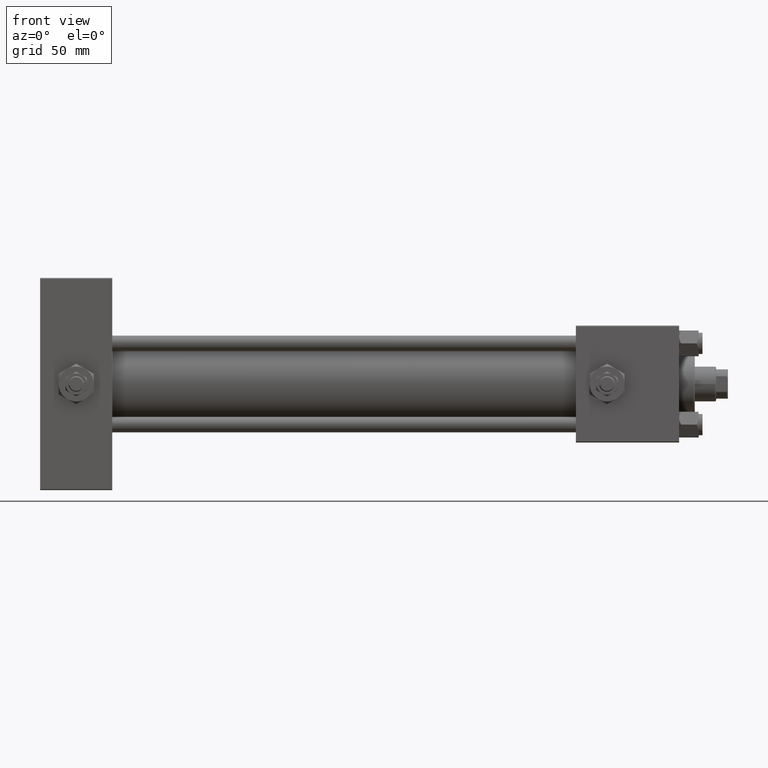
[diagram: clean part render]
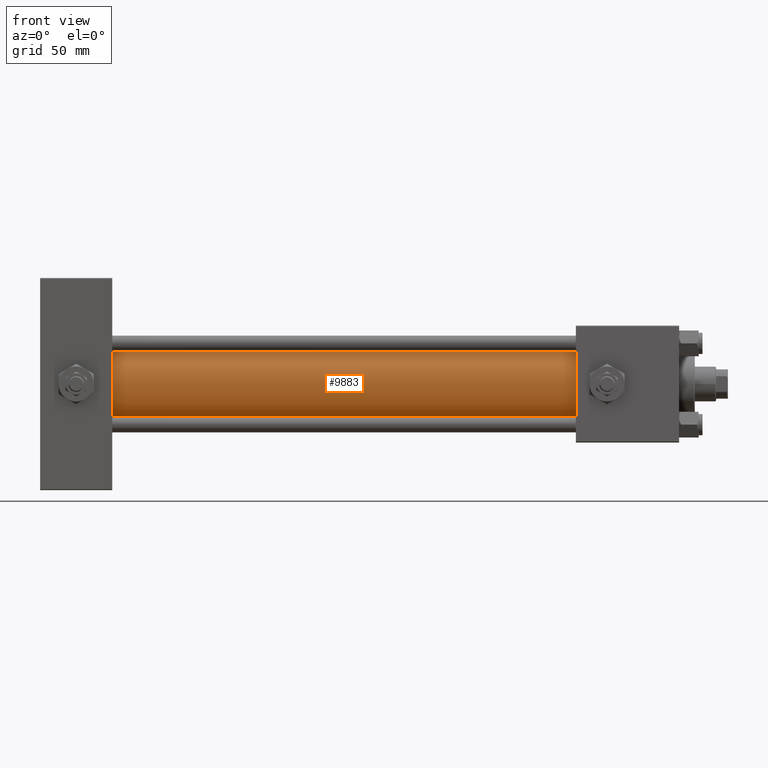
[diagram: same view with one face highlighted and labeled with its STEP entity id]
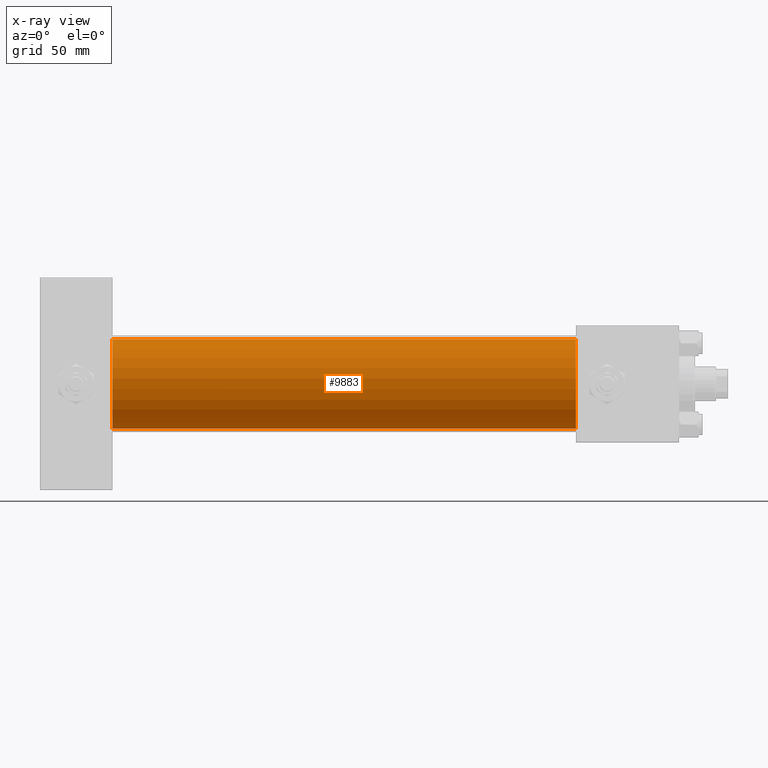
[diagram: x-ray of the same camera — body ghosted, the highlighted face saturated]
A machine part, front view. The second image highlights one B-rep face of the part: STEP entity #9883.
The next image is the same camera in x-ray: the body ghosted, the highlighted face saturated — about 0% of this face is hidden behind the body in this view.
In plain terms, the highlighted cylindrical surface (partial cylindrical patch) has radius 23 mm, axis along (-1, -0, -0).
Its self-contained STEP definition (entity closure, byte-faithful):
#370 = VERTEX_POINT ( 'NONE', #35804 ) ;
#2465 = EDGE_LOOP ( 'NONE', ( #39145, #46658, #7992, #23744 ) ) ;
#3704 = VERTEX_POINT ( 'NONE', #37259 ) ;
#6082 = CARTESIAN_POINT ( 'NONE',  ( 274.9999999999999432, -2.602085213965210642E-15, 0.000000000000000000 ) ) ;
#7679 = CYLINDRICAL_SURFACE ( 'NONE', #24881, 23.00000000000000000 ) ;
#7980 = CARTESIAN_POINT ( 'NONE',  ( 37.00000000000000711, -2.602085213965210642E-15, 0.000000000000000000 ) ) ;
#7992 = ORIENTED_EDGE ( 'NONE', *, *, #16468, .T. ) ;
#9094 = AXIS2_PLACEMENT_3D ( 'NONE', #7980, #24070, #31453 ) ;
#9883 = ADVANCED_FACE ( 'NONE', ( #44009 ), #7679, .T. ) ;
#12158 = CARTESIAN_POINT ( 'NONE',  ( 274.9999999999999432, -2.602085213965210642E-15, 0.000000000000000000 ) ) ;
#16468 = EDGE_CURVE ( 'NONE', #370, #37857, #30445, .T. ) ;
#18342 = CARTESIAN_POINT ( 'NONE',  ( 274.9999999999999432, -2.602085213965210642E-15, 23.00000000000000000 ) ) ;
#18465 = CIRCLE ( 'NONE', #48702, 23.00000000000000000 ) ;
#22530 = VECTOR ( 'NONE', #36409, 1000.000000000000000 ) ;
#23100 = EDGE_CURVE ( 'NONE', #370, #44529, #18465, .T. ) ;
#23744 = ORIENTED_EDGE ( 'NONE', *, *, #50417, .T. ) ;
#24024 = DIRECTION ( 'NONE',  ( 0.000000000000000000, 0.000000000000000000, 1.000000000000000000 ) ) ;
#24070 = DIRECTION ( 'NONE',  ( 1.000000000000000000, -0.000000000000000000, 0.000000000000000000 ) ) ;
#24881 = AXIS2_PLACEMENT_3D ( 'NONE', #12158, #47172, #24024 ) ;
#30445 = LINE ( 'NONE', #18342, #49461 ) ;
#31453 = DIRECTION ( 'NONE',  ( 0.000000000000000000, 0.000000000000000000, 1.000000000000000000 ) ) ;
#34009 = DIRECTION ( 'NONE',  ( 0.000000000000000000, 0.000000000000000000, -1.000000000000000000 ) ) ;
#35163 = CARTESIAN_POINT ( 'NONE',  ( 274.9999999999999432, 2.146024240737016609E-16, -23.00000000000000000 ) ) ;
#35804 = CARTESIAN_POINT ( 'NONE',  ( 274.9999999999999432, -2.602085213965210642E-15, 23.00000000000000000 ) ) ;
#35904 = LINE ( 'NONE', #47502, #22530 ) ;
#36409 = DIRECTION ( 'NONE',  ( -1.000000000000000000, -0.000000000000000000, -0.000000000000000000 ) ) ;
#37259 = CARTESIAN_POINT ( 'NONE',  ( 37.00000000000000711, 2.146024240737016609E-16, -23.00000000000000000 ) ) ;
#37857 = VERTEX_POINT ( 'NONE', #48199 ) ;
#38833 = DIRECTION ( 'NONE',  ( -1.000000000000000000, -0.000000000000000000, -0.000000000000000000 ) ) ;
#39145 = ORIENTED_EDGE ( 'NONE', *, *, #49151, .F. ) ;
#42408 = DIRECTION ( 'NONE',  ( 1.000000000000000000, 0.000000000000000000, 0.000000000000000000 ) ) ;
#44009 = FACE_OUTER_BOUND ( 'NONE', #2465, .T. ) ;
#44529 = VERTEX_POINT ( 'NONE', #35163 ) ;
#46658 = ORIENTED_EDGE ( 'NONE', *, *, #23100, .F. ) ;
#47172 = DIRECTION ( 'NONE',  ( -1.000000000000000000, -0.000000000000000000, -0.000000000000000000 ) ) ;
#47502 = CARTESIAN_POINT ( 'NONE',  ( 274.9999999999999432, 2.146024240737016609E-16, -23.00000000000000000 ) ) ;
#48199 = CARTESIAN_POINT ( 'NONE',  ( 37.00000000000000711, -2.602085213965210642E-15, 23.00000000000000000 ) ) ;
#48702 = AXIS2_PLACEMENT_3D ( 'NONE', #6082, #42408, #34009 ) ;
#49151 = EDGE_CURVE ( 'NONE', #44529, #3704, #35904, .T. ) ;
#49412 = CIRCLE ( 'NONE', #9094, 23.00000000000000000 ) ;
#49461 = VECTOR ( 'NONE', #38833, 1000.000000000000000 ) ;
#50417 = EDGE_CURVE ( 'NONE', #37857, #3704, #49412, .T. ) ;